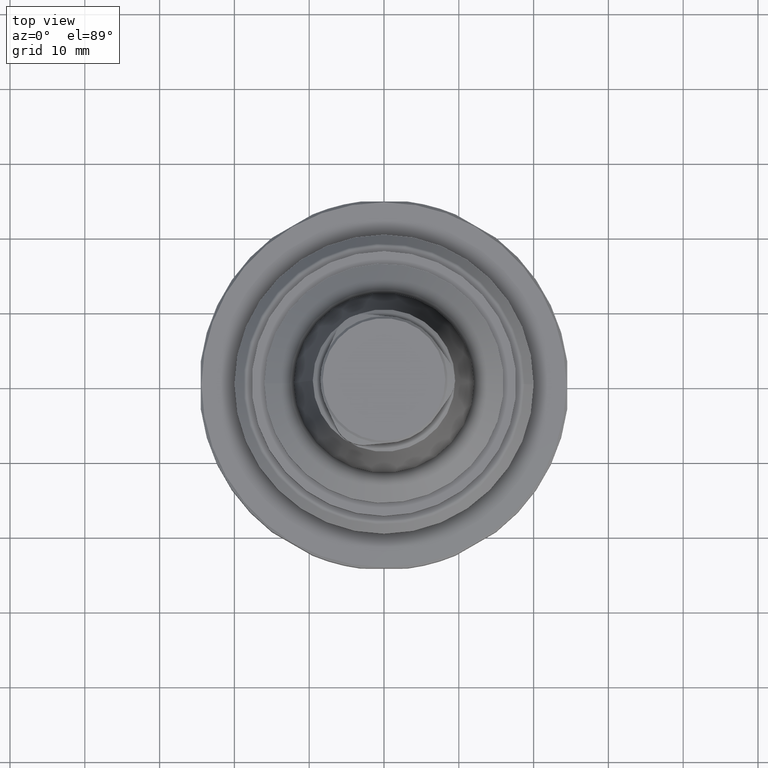
[diagram: clean part render]
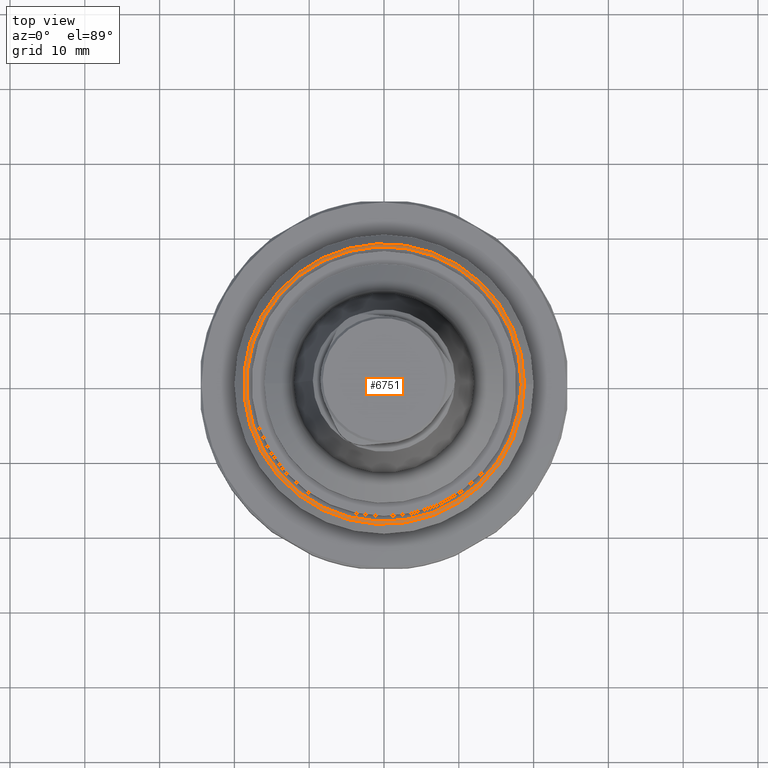
[diagram: same view with one face highlighted and labeled with its STEP entity id]
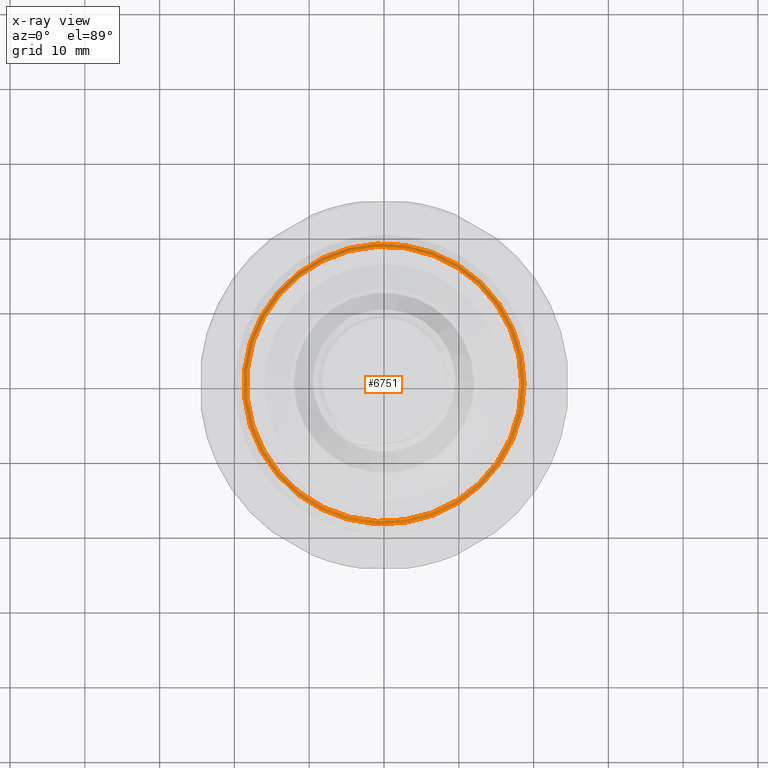
[diagram: x-ray of the same camera — body ghosted, the highlighted face saturated]
A machine part, top view. The second image highlights one B-rep face of the part: STEP entity #6751.
The next image is the same camera in x-ray: the body ghosted, the highlighted face saturated — about 0% of this face is hidden behind the body in this view.
In plain terms, the highlighted toroidal blend (fillet) surface has major radius 18.3515 mm and minor (blend) radius 0.6 mm.
Its self-contained STEP definition (entity closure, byte-faithful):
#6415 = PLANE('',#6416);
#6416 = AXIS2_PLACEMENT_3D('',#6417,#6418,#6419);
#6417 = CARTESIAN_POINT('',(2.888894916581E-031,-9.089951014118E-016,4.4
    ));
#6418 = DIRECTION('',(-2.605631487548E-018,5.607991387788E-033,-1.));
#6419 = DIRECTION('',(1.,-2.440810140808E-016,-2.605631487548E-018));
#6444 = EDGE_CURVE('',#6445,#6445,#6447,.T.);
#6445 = VERTEX_POINT('',#6446);
#6446 = CARTESIAN_POINT('',(18.352471029242,-5.388484841118E-015,4.4));
#6447 = SURFACE_CURVE('',#6448,(#6453,#6460),.PCURVE_S1.);
#6448 = CIRCLE('',#6449,18.352471029242);
#6449 = AXIS2_PLACEMENT_3D('',#6450,#6451,#6452);
#6450 = CARTESIAN_POINT('',(2.888894916581E-031,-9.089951014118E-016,4.4
    ));
#6451 = DIRECTION('',(-2.605631487548E-018,5.607991387788E-033,-1.));
#6452 = DIRECTION('',(1.,-2.440810140808E-016,-2.605631487548E-018));
#6453 = PCURVE('',#6415,#6454);
#6454 = DEFINITIONAL_REPRESENTATION('',(#6455),#6459);
#6455 = CIRCLE('',#6456,18.352471029242);
#6456 = AXIS2_PLACEMENT_2D('',#6457,#6458);
#6457 = CARTESIAN_POINT('',(0.E+000,-0.E+000));
#6458 = DIRECTION('',(1.,1.295521594224E-050));
#6459 = ( GEOMETRIC_REPRESENTATION_CONTEXT(2) 
PARAMETRIC_REPRESENTATION_CONTEXT() REPRESENTATION_CONTEXT('2D SPACE',''
  ) );
#6460 = PCURVE('',#6461,#6466);
#6461 = TOROIDAL_SURFACE('',#6462,18.351471029242,0.6);
#6462 = AXIS2_PLACEMENT_3D('',#6463,#6464,#6465);
#6463 = CARTESIAN_POINT('',(-1.563376721167E-018,-9.089951014118E-016,
    3.800000833334));
#6464 = DIRECTION('',(-2.605631487548E-018,5.607991387788E-033,-1.));
#6465 = DIRECTION('',(1.,-2.440810140808E-016,-2.605631487548E-018));
#6466 = DEFINITIONAL_REPRESENTATION('',(#6467),#6493);
#6467 = B_SPLINE_CURVE_WITH_KNOTS('',3,(#6468,#6469,#6470,#6471,#6472,
    #6473,#6474,#6475,#6476,#6477,#6478,#6479,#6480,#6481,#6482,#6483,
    #6484,#6485,#6486,#6487,#6488,#6489,#6490,#6491,#6492),
  .UNSPECIFIED.,.F.,.F.,(4,1,1,1,1,1,1,1,1,1,1,1,1,1,1,1,1,1,1,1,1,1,4),
  (0.E+000,0.285599332145,0.571198664289,0.856797996434,1.142397328578,
    1.427996660723,1.713595992867,1.999195325012,2.284794657156,
    2.570393989301,2.855993321445,3.14159265359,3.427191985734,
    3.712791317879,3.998390650023,4.283989982168,4.569589314312,
    4.855188646457,5.140787978601,5.426387310746,5.711986642891,
    5.997585975035,6.28318530718),.QUASI_UNIFORM_KNOTS.);
#6468 = CARTESIAN_POINT('',(0.E+000,4.714055647823));
#6469 = CARTESIAN_POINT('',(9.519977738151E-002,4.714055647823));
#6470 = CARTESIAN_POINT('',(0.285599332145,4.714055647823));
#6471 = CARTESIAN_POINT('',(0.571198664289,4.714055647823));
#6472 = CARTESIAN_POINT('',(0.856797996434,4.714055647823));
#6473 = CARTESIAN_POINT('',(1.142397328578,4.714055647823));
#6474 = CARTESIAN_POINT('',(1.427996660723,4.714055647823));
#6475 = CARTESIAN_POINT('',(1.713595992867,4.714055647823));
#6476 = CARTESIAN_POINT('',(1.999195325012,4.714055647823));
#6477 = CARTESIAN_POINT('',(2.284794657156,4.714055647823));
#6478 = CARTESIAN_POINT('',(2.570393989301,4.714055647823));
#6479 = CARTESIAN_POINT('',(2.855993321445,4.714055647823));
#6480 = CARTESIAN_POINT('',(3.14159265359,4.714055647823));
#6481 = CARTESIAN_POINT('',(3.427191985734,4.714055647823));
#6482 = CARTESIAN_POINT('',(3.712791317879,4.714055647823));
#6483 = CARTESIAN_POINT('',(3.998390650023,4.714055647823));
#6484 = CARTESIAN_POINT('',(4.283989982168,4.714055647823));
#6485 = CARTESIAN_POINT('',(4.569589314312,4.714055647823));
#6486 = CARTESIAN_POINT('',(4.855188646457,4.714055647823));
#6487 = CARTESIAN_POINT('',(5.140787978601,4.714055647823));
#6488 = CARTESIAN_POINT('',(5.426387310746,4.714055647823));
#6489 = CARTESIAN_POINT('',(5.711986642891,4.714055647823));
#6490 = CARTESIAN_POINT('',(5.997585975035,4.714055647823));
#6491 = CARTESIAN_POINT('',(6.187985529798,4.714055647823));
#6492 = CARTESIAN_POINT('',(6.28318530718,4.714055647823));
#6493 = ( GEOMETRIC_REPRESENTATION_CONTEXT(2) 
PARAMETRIC_REPRESENTATION_CONTEXT() REPRESENTATION_CONTEXT('2D SPACE',''
  ) );
#6751 = ADVANCED_FACE('',(#6752),#6461,.T.);
#6752 = FACE_BOUND('',#6753,.T.);
#6753 = EDGE_LOOP('',(#6754,#6827,#6851,#6852));
#6754 = ORIENTED_EDGE('',*,*,#6755,.F.);
#6755 = EDGE_CURVE('',#6756,#6756,#6758,.T.);
#6756 = VERTEX_POINT('',#6757);
#6757 = CARTESIAN_POINT('',(18.775735097954,-5.491795564233E-015,
    4.224264902046));
#6758 = SURFACE_CURVE('',#6759,(#6764,#6793),.PCURVE_S1.);
#6759 = CIRCLE('',#6760,18.775735097954);
#6760 = AXIS2_PLACEMENT_3D('',#6761,#6762,#6763);
#6761 = CARTESIAN_POINT('',(-4.579009046963E-019,-9.089951014118E-016,
    4.224264902046));
#6762 = DIRECTION('',(-2.605631487548E-018,5.607991387788E-033,-1.));
#6763 = DIRECTION('',(1.,-2.440810140808E-016,-2.605631487548E-018));
#6764 = PCURVE('',#6461,#6765);
#6765 = DEFINITIONAL_REPRESENTATION('',(#6766),#6792);
#6766 = B_SPLINE_CURVE_WITH_KNOTS('',3,(#6767,#6768,#6769,#6770,#6771,
    #6772,#6773,#6774,#6775,#6776,#6777,#6778,#6779,#6780,#6781,#6782,
    #6783,#6784,#6785,#6786,#6787,#6788,#6789,#6790,#6791),
  .UNSPECIFIED.,.F.,.F.,(4,1,1,1,1,1,1,1,1,1,1,1,1,1,1,1,1,1,1,1,1,1,4),
  (0.E+000,0.285599332145,0.571198664289,0.856797996434,1.142397328578,
    1.427996660723,1.713595992867,1.999195325012,2.284794657156,
    2.570393989301,2.855993321445,3.14159265359,3.427191985734,
    3.712791317879,3.998390650023,4.283989982168,4.569589314312,
    4.855188646457,5.140787978601,5.426387310746,5.711986642891,
    5.997585975035,6.28318530718),.QUASI_UNIFORM_KNOTS.);
#6767 = CARTESIAN_POINT('',(0.E+000,5.497787143782));
#6768 = CARTESIAN_POINT('',(9.519977738151E-002,5.497787143782));
#6769 = CARTESIAN_POINT('',(0.285599332145,5.497787143782));
#6770 = CARTESIAN_POINT('',(0.571198664289,5.497787143782));
#6771 = CARTESIAN_POINT('',(0.856797996434,5.497787143782));
#6772 = CARTESIAN_POINT('',(1.142397328578,5.497787143782));
#6773 = CARTESIAN_POINT('',(1.427996660723,5.497787143782));
#6774 = CARTESIAN_POINT('',(1.713595992867,5.497787143782));
#6775 = CARTESIAN_POINT('',(1.999195325012,5.497787143782));
#6776 = CARTESIAN_POINT('',(2.284794657156,5.497787143782));
#6777 = CARTESIAN_POINT('',(2.570393989301,5.497787143782));
#6778 = CARTESIAN_POINT('',(2.855993321445,5.497787143782));
#6779 = CARTESIAN_POINT('',(3.14159265359,5.497787143782));
#6780 = CARTESIAN_POINT('',(3.427191985734,5.497787143782));
#6781 = CARTESIAN_POINT('',(3.712791317879,5.497787143782));
#6782 = CARTESIAN_POINT('',(3.998390650023,5.497787143782));
#6783 = CARTESIAN_POINT('',(4.283989982168,5.497787143782));
#6784 = CARTESIAN_POINT('',(4.569589314312,5.497787143782));
#6785 = CARTESIAN_POINT('',(4.855188646457,5.497787143782));
#6786 = CARTESIAN_POINT('',(5.140787978601,5.497787143782));
#6787 = CARTESIAN_POINT('',(5.426387310746,5.497787143782));
#6788 = CARTESIAN_POINT('',(5.711986642891,5.497787143782));
#6789 = CARTESIAN_POINT('',(5.997585975035,5.497787143782));
#6790 = CARTESIAN_POINT('',(6.187985529798,5.497787143782));
#6791 = CARTESIAN_POINT('',(6.28318530718,5.497787143782));
#6792 = ( GEOMETRIC_REPRESENTATION_CONTEXT(2) 
PARAMETRIC_REPRESENTATION_CONTEXT() REPRESENTATION_CONTEXT('2D SPACE',''
  ) );
#6793 = PCURVE('',#6794,#6799);
#6794 = CONICAL_SURFACE('',#6795,18.775735097954,0.785398163397);
#6795 = AXIS2_PLACEMENT_3D('',#6796,#6797,#6798);
#6796 = CARTESIAN_POINT('',(-4.579009046963E-019,-9.089951014118E-016,
    4.224264902046));
#6797 = DIRECTION('',(-2.605631487548E-018,5.607991387788E-033,-1.));
#6798 = DIRECTION('',(1.,-2.440810140808E-016,-2.605631487548E-018));
#6799 = DEFINITIONAL_REPRESENTATION('',(#6800),#6826);
#6800 = B_SPLINE_CURVE_WITH_KNOTS('',3,(#6801,#6802,#6803,#6804,#6805,
    #6806,#6807,#6808,#6809,#6810,#6811,#6812,#6813,#6814,#6815,#6816,
    #6817,#6818,#6819,#6820,#6821,#6822,#6823,#6824,#6825),
  .UNSPECIFIED.,.F.,.F.,(4,1,1,1,1,1,1,1,1,1,1,1,1,1,1,1,1,1,1,1,1,1,4),
  (0.E+000,0.285599332145,0.571198664289,0.856797996434,1.142397328578,
    1.427996660723,1.713595992867,1.999195325012,2.284794657156,
    2.570393989301,2.855993321445,3.14159265359,3.427191985734,
    3.712791317879,3.998390650023,4.283989982168,4.569589314312,
    4.855188646457,5.140787978601,5.426387310746,5.711986642891,
    5.997585975035,6.28318530718),.QUASI_UNIFORM_KNOTS.);
#6801 = CARTESIAN_POINT('',(0.E+000,0.E+000));
#6802 = CARTESIAN_POINT('',(9.519977738151E-002,0.E+000));
#6803 = CARTESIAN_POINT('',(0.285599332145,-2.91976342652E-018));
#6804 = CARTESIAN_POINT('',(0.571198664289,1.021917199282E-017));
#6805 = CARTESIAN_POINT('',(0.856797996434,-3.795692454476E-017));
#6806 = CARTESIAN_POINT('',(1.142397328578,1.416085261862E-016));
#6807 = CARTESIAN_POINT('',(1.427996660723,-5.284771802001E-016));
#6808 = CARTESIAN_POINT('',(1.713595992867,1.972300194614E-015));
#6809 = CARTESIAN_POINT('',(1.999195325012,3.297417438145E-015));
#6810 = CARTESIAN_POINT('',(2.284794657156,-4.503828910794E-015));
#6811 = CARTESIAN_POINT('',(2.570393989301,4.059757168628E-015));
#6812 = CARTESIAN_POINT('',(2.855993321445,-1.077058727317E-015));
#6813 = CARTESIAN_POINT('',(3.14159265359,2.484777406417E-016));
#6814 = CARTESIAN_POINT('',(3.427191985734,8.314776475052E-017));
#6815 = CARTESIAN_POINT('',(3.712791317879,-5.810687996438E-016));
#6816 = CARTESIAN_POINT('',(3.998390650023,2.241127433825E-015));
#6817 = CARTESIAN_POINT('',(4.283989982168,2.274700100746E-015));
#6818 = CARTESIAN_POINT('',(4.569589314312,-6.817868004083E-016));
#6819 = CARTESIAN_POINT('',(4.855188646457,4.524471008868E-016));
#6820 = CARTESIAN_POINT('',(5.140787978601,-1.128001603139E-015));
#6821 = CARTESIAN_POINT('',(5.426387310746,4.059559311669E-015));
#6822 = CARTESIAN_POINT('',(5.711986642891,-4.452094607136E-015));
#6823 = CARTESIAN_POINT('',(5.997585975035,3.090678080472E-015));
#6824 = CARTESIAN_POINT('',(6.187985529798,2.861908241256E-015));
#6825 = CARTESIAN_POINT('',(6.28318530718,0.E+000));
#6826 = ( GEOMETRIC_REPRESENTATION_CONTEXT(2) 
PARAMETRIC_REPRESENTATION_CONTEXT() REPRESENTATION_CONTEXT('2D SPACE',''
  ) );
#6827 = ORIENTED_EDGE('',*,*,#6828,.F.);
#6828 = EDGE_CURVE('',#6445,#6756,#6829,.T.);
#6829 = SEAM_CURVE('',#6830,(#6837,#6844),.PCURVE_S1.);
#6830 = B_SPLINE_CURVE_WITH_KNOTS('',5,(#6831,#6832,#6833,#6834,#6835,
    #6836),.UNSPECIFIED.,.F.,.F.,(6,6),(4.714055647823,5.497787143782),
  .PIECEWISE_BEZIER_KNOTS.);
#6831 = CARTESIAN_POINT('',(18.352471029242,-8.934258606366E-016,4.4));
#6832 = CARTESIAN_POINT('',(18.446518678135,-8.933460757135E-016,
    4.399843253701));
#6833 = CARTESIAN_POINT('',(18.540537093414,-8.932663155906E-016,
    4.381263579904));
#6834 = CARTESIAN_POINT('',(18.629703418961,-8.931906717174E-016,
    4.344242594395));
#6835 = CARTESIAN_POINT('',(18.709233275303,-8.931232029018E-016,
    4.290766724696));
#6836 = CARTESIAN_POINT('',(18.775735097954,-8.930667863633E-016,
    4.224264902046));
#6837 = PCURVE('',#6461,#6838);
#6838 = DEFINITIONAL_REPRESENTATION('',(#6839),#6843);
#6839 = LINE('',#6840,#6841);
#6840 = CARTESIAN_POINT('',(0.E+000,0.E+000));
#6841 = VECTOR('',#6842,1.);
#6842 = DIRECTION('',(0.E+000,1.));
#6843 = ( GEOMETRIC_REPRESENTATION_CONTEXT(2) 
PARAMETRIC_REPRESENTATION_CONTEXT() REPRESENTATION_CONTEXT('2D SPACE',''
  ) );
#6844 = PCURVE('',#6461,#6845);
#6845 = DEFINITIONAL_REPRESENTATION('',(#6846),#6850);
#6846 = LINE('',#6847,#6848);
#6847 = CARTESIAN_POINT('',(6.28318530718,0.E+000));
#6848 = VECTOR('',#6849,1.);
#6849 = DIRECTION('',(0.E+000,1.));
#6850 = ( GEOMETRIC_REPRESENTATION_CONTEXT(2) 
PARAMETRIC_REPRESENTATION_CONTEXT() REPRESENTATION_CONTEXT('2D SPACE',''
  ) );
#6851 = ORIENTED_EDGE('',*,*,#6444,.T.);
#6852 = ORIENTED_EDGE('',*,*,#6828,.T.);